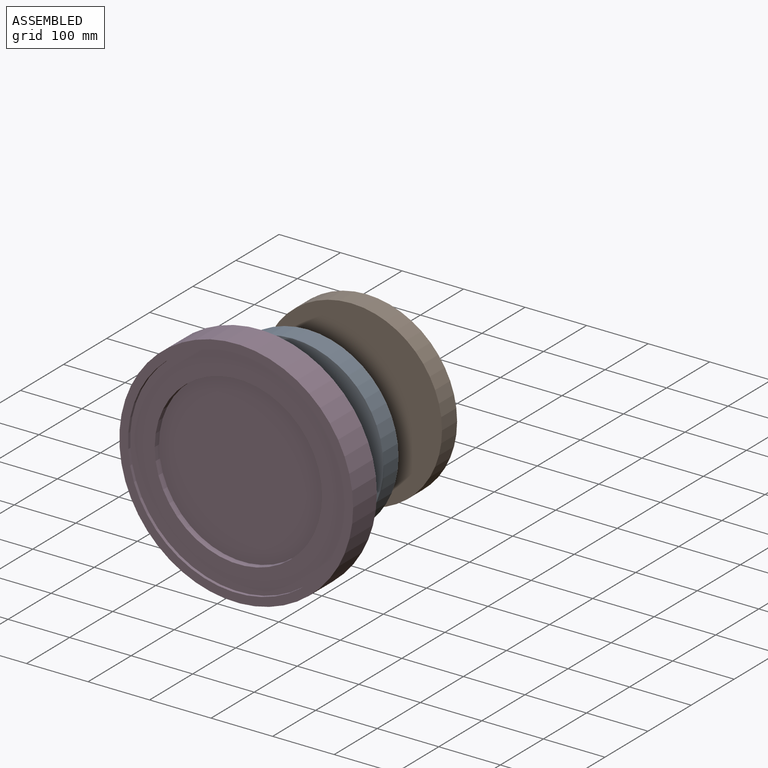
[diagram: assembled view]
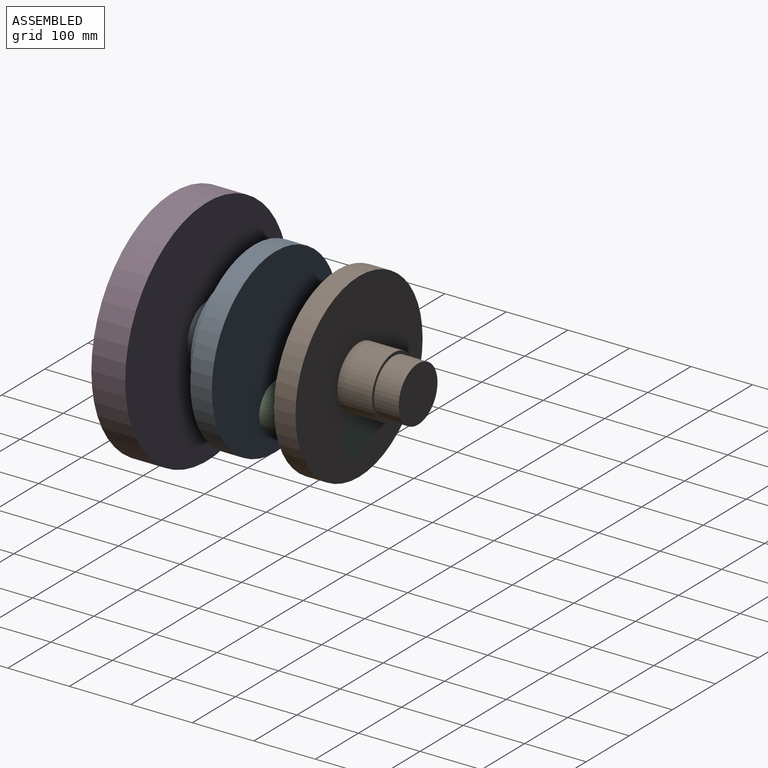
[diagram: assembled view, second angle]
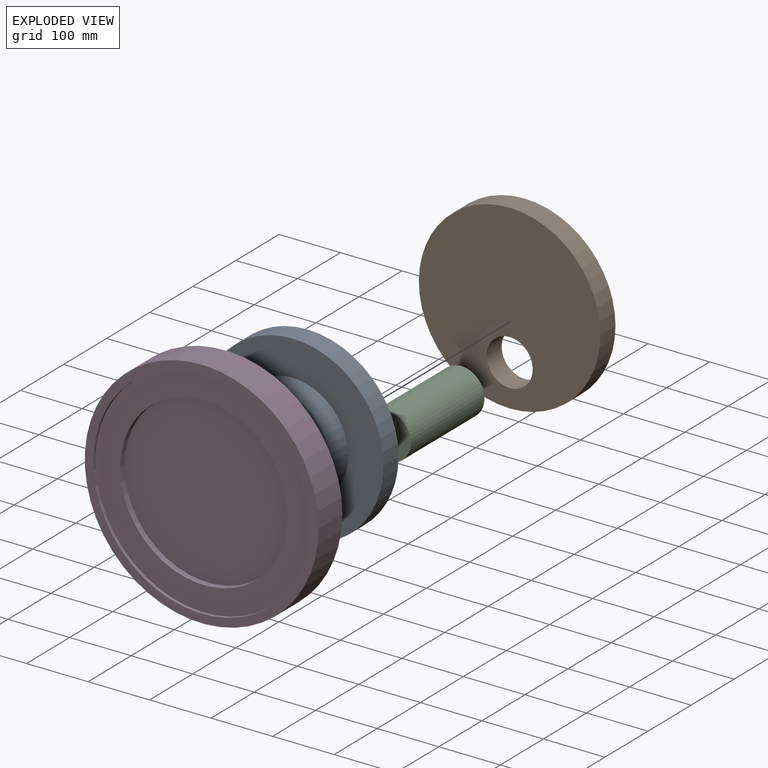
[diagram: exploded view]
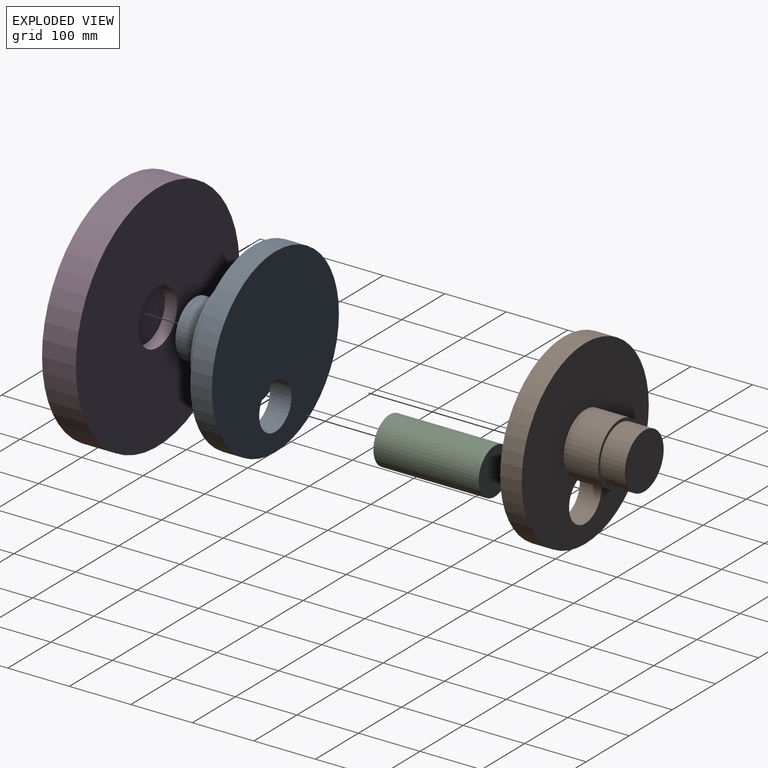
[diagram: exploded view, second angle]
ASSEMBLY  parts=4 mates=3
PART A: 11 faces, bbox 295x131x295 mm
  f0: cylinder r=50mm len=100mm, axis (0,-1,0), area 5026.5mm2, adj f1,f6
  f1: plane 100x100mm, normal (0,1,0), area 1492.3mm2, adj f0,f2
  f2: cylinder r=45mm len=90mm, axis (0,-1,0), area 11309.7mm2, adj f1,f3
  f3: plane 90x90mm, normal (0,1,0), area 6361.7mm2, adj f2
  f4: plane 75x47.5mm, normal (0,-1,0), area 2758.1mm2, adj f5,f9
  f5: cylinder r=90mm len=180mm, axis (0,-1,0), area 22619.5mm2, adj f4,f6,f10
  f6: plane 180x180mm, normal (0,1,0), area 17592.9mm2, adj f0,f5
  f7: cylinder r=147.5mm len=295mm, axis (0,1,0), area 32436.9mm2, adj f8,f10
  f8: plane 295x295mm, normal (0,-1,0), area 63931.4mm2, adj f7,f9
  f9: cylinder r=37.5mm len=75mm, axis (0,-1,0), area 8246.7mm2, adj f4,f8,f10
  f10: plane 295x295mm, normal (0,1,0), area 41242.6mm2, adj f5,f7,f9
PART B: 9 faces, bbox 295x131x295 mm
  f0: cylinder r=147.5mm len=295mm, axis (0,1,0), area 32436.9mm2, adj f1,f2
  f1: plane 295x295mm, normal (0,-1,0), area 63931.4mm2, adj f0,f7
  f2: plane 295x295mm, normal (0,1,0), area 56254.2mm2, adj f0,f3,f7
  f3: cylinder r=50mm len=100mm, axis (0,-1,0), area 17414.1mm2, adj f2,f4,f7,f8
  f4: plane 100x100mm, normal (0,1,0), area 1492.3mm2, adj f3,f5
  f5: cylinder r=45mm len=90mm, axis (0,-1,0), area 11309.7mm2, adj f4,f6
  f6: plane 90x90mm, normal (0,1,0), area 6361.7mm2, adj f5
  f7: cylinder r=37.5mm len=75mm, axis (0,-1,0), area 8428.8mm2, adj f1,f2,f3,f8
  f8: plane 35.01x7.5mm, normal (0,-1,0), area 176.8mm2, adj f3,f7
PART C: 3 faces, bbox 75x171x75 mm
  f0: cylinder r=37.5mm len=171mm, axis (0,1,0), area 40290.9mm2, adj f1,f2
  f1: plane 75x75mm, normal (0,-1,0), area 4417.9mm2, adj f0
  f2: plane 75x75mm, normal (0,1,0), area 4417.9mm2, adj f0
PART D: 9 faces, bbox 380x55x380 mm
  f0: cylinder r=190mm len=380mm, axis (0,1,0), area 65659.3mm2, adj f1,f2
  f1: plane 380x380mm, normal (0,-1,0), area 16097.5mm2, adj f0,f5
  f2: plane 380x380mm, normal (0,1,0), area 107049.8mm2, adj f0,f3
  f3: cylinder r=45mm len=90mm, axis (0,1,0), area 5654.9mm2, adj f2,f4
  f4: plane 90x90mm, normal (0,1,0), area 6361.7mm2, adj f3
  f5: cylinder r=176mm len=352mm, axis (0,-1,0), area 5529.2mm2, adj f1,f6
  f6: plane 352x352mm, normal (0,-1,0), area 39207.1mm2, adj f5,f7
  f7: cylinder r=136mm len=272mm, axis (0,-1,0), area 8545.1mm2, adj f6,f8
  f8: plane 272x272mm, normal (0,-1,0), area 58106.9mm2, adj f7
PLACE A rot(axis=(0,0,1),180deg) t=(30.62,231.28,-17.54)mm fixed
PLACE B t=(30.62,402.28,-17.54)mm
PLACE C t=(30.62,402.28,-97.54)mm
PLACE D t=(30.62,155.28,-17.54)mm
MATE fastened A.f9 <-> C.f0  axis (0,-1,0) through (30.62,231.28,-97.54)mm
MATE fastened D.f0 <-> A.f0  axis (0,1,0) through (30.62,135.28,-17.54)mm
MATE fastened C.f0 <-> B.f7  axis (0,1,0) through (30.62,402.28,-97.54)mm
